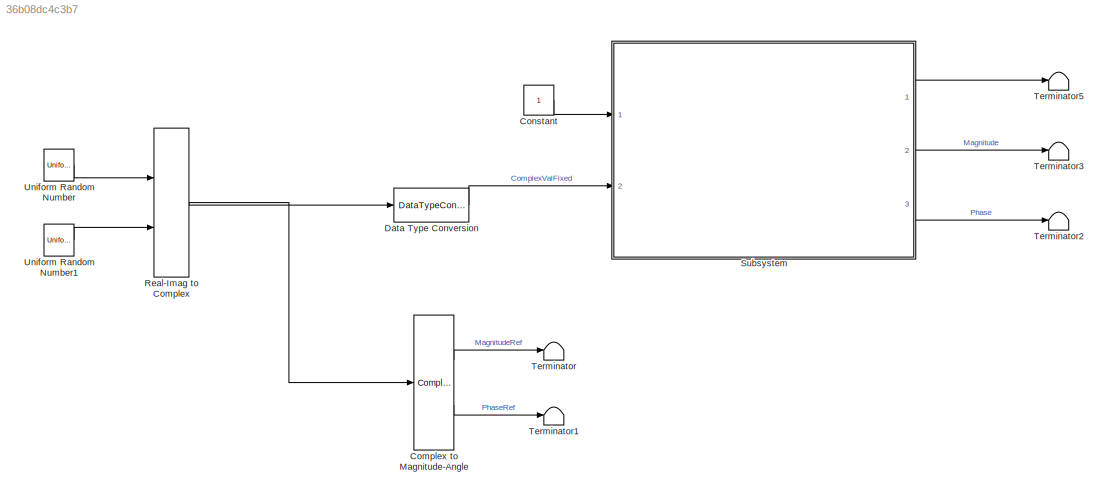
MODEL slx_36b08dc4c3b7
KIND model
CONFIG AbsTol = auto
CONFIG EnableMultiTasking = off
CONFIG FixedStep = auto
CONFIG MaxStep = auto
CONFIG MinStep = auto
CONFIG RelTol = 1e-3
CONFIG SampleTimeConstraint = Unconstrained
CONFIG SolverName = VariableStepAuto
CONFIG StartTime = 0.0
CONFIG StopTime = 10.0
BLOCK [ComplexToMagnitudeAngle] Complex to Magnitude-Angle
  Ports = [1, 2]
BLOCK [Constant] Constant
  OutDataTypeStr = boolean
  SampleTime = -1
BLOCK [DataTypeConversion] Data Type Conversion
  OutDataTypeStr = fixdt(0,32,8)
  RndMeth = Round
  SaturateOnIntegerOverflow = off
BLOCK [RealImagToComplex] Real-Imag to Complex
  Ports = [2, 1]
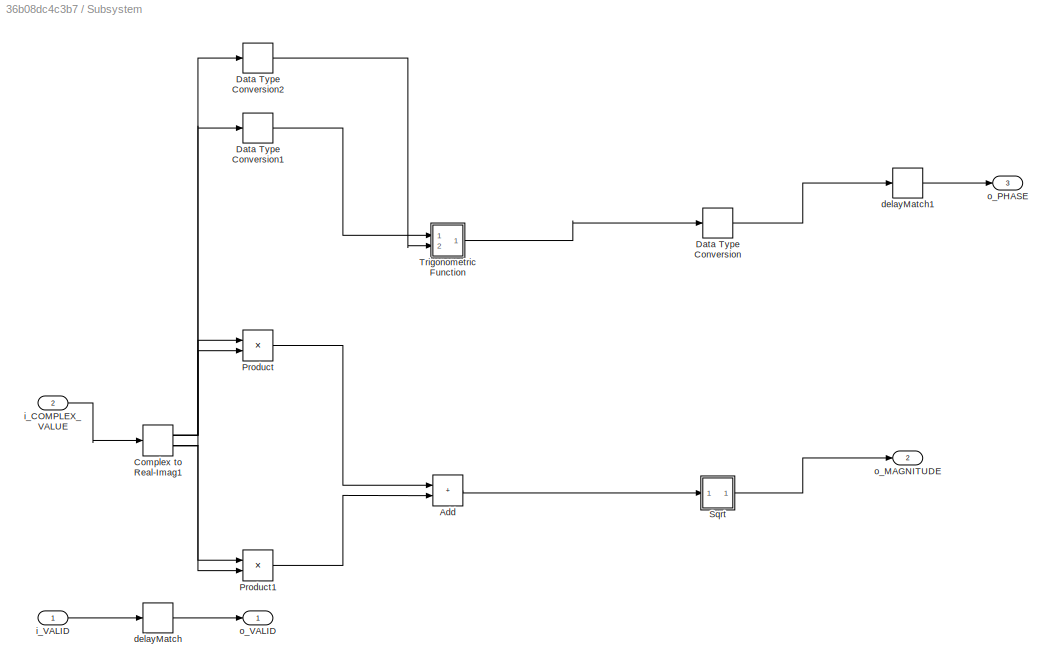
BLOCK [SubSystem] Subsystem
  Ports = [2, 3]
  RequestExecContextInheritance = off
BLOCK [Sum] Subsystem/Add
  AccumDataTypeStr = fixdt(0, 64, 16)
  IconShape = rectangular
  OutDataTypeStr = fixdt(0, 64, 16)
  Ports = [2, 1]
  SampleTime = 1
BLOCK [ComplexToRealImag] Subsystem/Complex to Real-Imag1
  Ports = [1, 2]
  SampleTime = 1
BLOCK [DataTypeConversion] Subsystem/Data Type Conversion
  OutDataTypeStr = fixdt(1, 16, 13)
  RndMeth = Floor
  SampleTime = 1
  SaturateOnIntegerOverflow = off
BLOCK [DataTypeConversion] Subsystem/Data Type Conversion1
  OutDataTypeStr = fixdt(1, 32, 8)
  RndMeth = Floor
  SampleTime = 1
  SaturateOnIntegerOverflow = off
BLOCK [DataTypeConversion] Subsystem/Data Type Conversion2
  OutDataTypeStr = fixdt(1, 32, 8)
  RndMeth = Floor
  SampleTime = 1
  SaturateOnIntegerOverflow = off
BLOCK [Product] Subsystem/Product
  Inputs = **
  OutDataTypeStr = fixdt(0, 64, 16)
  Ports = [2, 1]
  SampleTime = 1
BLOCK [Product] Subsystem/Product1
  Inputs = **
  OutDataTypeStr = fixdt(0, 64, 16)
  Ports = [2, 1]
  SampleTime = 1
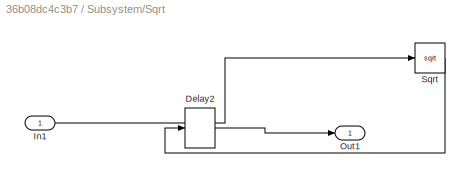
BLOCK [SubSystem] Subsystem/Sqrt
  Ports = [1, 1]
  RequestExecContextInheritance = off
BLOCK [Delay] Subsystem/Sqrt/Delay2
  DelayLength = 34
  InputPortMap = u0
  Ports = [1, 1]
BLOCK [Inport] Subsystem/Sqrt/In1
BLOCK [Outport] Subsystem/Sqrt/Out1
BLOCK [Sqrt] Subsystem/Sqrt/Sqrt
  OutDataTypeStr = fixdt(0,33,8)
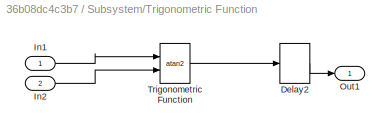
BLOCK [SubSystem] Subsystem/Trigonometric Function
  Ports = [2, 1]
  RequestExecContextInheritance = off
BLOCK [Delay] Subsystem/Trigonometric Function/Delay2
  DelayLength = 14
  InputPortMap = u0
  Ports = [1, 1]
BLOCK [Inport] Subsystem/Trigonometric Function/In1
BLOCK [Inport] Subsystem/Trigonometric Function/In2
  Port = 2
BLOCK [Outport] Subsystem/Trigonometric Function/Out1
BLOCK [Trigonometry] Subsystem/Trigonometric Function/Trigonometric Function
  ApproximationMethod = CORDIC
  Operator = atan2
  Ports = [2, 1]
BLOCK [Delay] Subsystem/delayMatch
  DelayLength = double(34)
  InitialCondition = 0
  InputPortMap = u0
  Ports = [1, 1]
  SampleTime = 1
BLOCK [Delay] Subsystem/delayMatch1
  DelayLength = double(20)
  InitialCondition = 0
  InputPortMap = u0
  Ports = [1, 1]
  SampleTime = 1
BLOCK [Inport] Subsystem/i_COMPLEX_VALUE
  LockScale = on
  OutDataTypeStr = fixdt(0, 32, 8)
  Port = 2
  PortDimensions = 1
  SampleTime = 1
  SignalType = complex
  VarSizeSig = No
BLOCK [Inport] Subsystem/i_VALID
  OutDataTypeStr = boolean
  PortDimensions = 1
  SampleTime = 1
BLOCK [Outport] Subsystem/o_MAGNITUDE
  Port = 2
  SampleTime = 1
BLOCK [Outport] Subsystem/o_PHASE
  Port = 3
  SampleTime = 1
BLOCK [Outport] Subsystem/o_VALID
  OutDataTypeStr = boolean
  SampleTime = 1
BLOCK [Terminator] Terminator
BLOCK [Terminator] Terminator1
BLOCK [Terminator] Terminator2
BLOCK [Terminator] Terminator3
BLOCK [Terminator] Terminator5
BLOCK [UniformRandomNumber] Uniform Random Number
  Maximum = 16777215.9909375
  Minimum = 0
  SampleTime = 1
  Seed = 24
BLOCK [UniformRandomNumber] Uniform Random Number1
  Maximum = 16777215.9909375
  Minimum = 0
  SampleTime = 1
  Seed = 25
LINE Complex to Magnitude-Angle:1 -> Terminator:1
LINE Complex to Magnitude-Angle:2 -> Terminator1:1
LINE Constant:1 -> Subsystem:1
LINE Data Type Conversion:1 -> Subsystem:2
NET Real-Imag to Complex:1 -> Complex to Magnitude-Angle:1, Data Type Conversion:1
LINE Subsystem/Add:1 -> Subsystem/Sqrt:1
NET Subsystem/Complex to Real-Imag1:1 -> Subsystem/Data Type Conversion2:1, Subsystem/Product:1, Subsystem/Product:2
NET Subsystem/Complex to Real-Imag1:2 -> Subsystem/Data Type Conversion1:1, Subsystem/Product1:1, Subsystem/Product1:2
LINE Subsystem/Data Type Conversion1:1 -> Subsystem/Trigonometric Function:1
LINE Subsystem/Data Type Conversion2:1 -> Subsystem/Trigonometric Function:2
LINE Subsystem/Data Type Conversion:1 -> Subsystem/delayMatch1:1
LINE Subsystem/Product1:1 -> Subsystem/Add:2
LINE Subsystem/Product:1 -> Subsystem/Add:1
LINE Subsystem/Sqrt/Delay2:1 -> Subsystem/Sqrt/Out1:1
LINE Subsystem/Sqrt/In1:1 -> Subsystem/Sqrt/Sqrt:1
LINE Subsystem/Sqrt/Sqrt:1 -> Subsystem/Sqrt/Delay2:1
LINE Subsystem/Sqrt:1 -> Subsystem/o_MAGNITUDE:1
LINE Subsystem/Trigonometric Function/Delay2:1 -> Subsystem/Trigonometric Function/Out1:1
LINE Subsystem/Trigonometric Function/In1:1 -> Subsystem/Trigonometric Function/Trigonometric Function:1
LINE Subsystem/Trigonometric Function/In2:1 -> Subsystem/Trigonometric Function/Trigonometric Function:2
LINE Subsystem/Trigonometric Function/Trigonometric Function:1 -> Subsystem/Trigonometric Function/Delay2:1
LINE Subsystem/Trigonometric Function:1 -> Subsystem/Data Type Conversion:1
LINE Subsystem/delayMatch1:1 -> Subsystem/o_PHASE:1
LINE Subsystem/delayMatch:1 -> Subsystem/o_VALID:1
LINE Subsystem/i_COMPLEX_VALUE:1 -> Subsystem/Complex to Real-Imag1:1
LINE Subsystem/i_VALID:1 -> Subsystem/delayMatch:1
LINE Subsystem:1 -> Terminator5:1
LINE Subsystem:2 -> Terminator3:1
LINE Subsystem:3 -> Terminator2:1
LINE Uniform Random Number1:1 -> Real-Imag to Complex:2
LINE Uniform Random Number:1 -> Real-Imag to Complex:1
note: NET lines group one-source signal fan-out (src -> all destinations, sorted); 1:1 wires keep LINE
